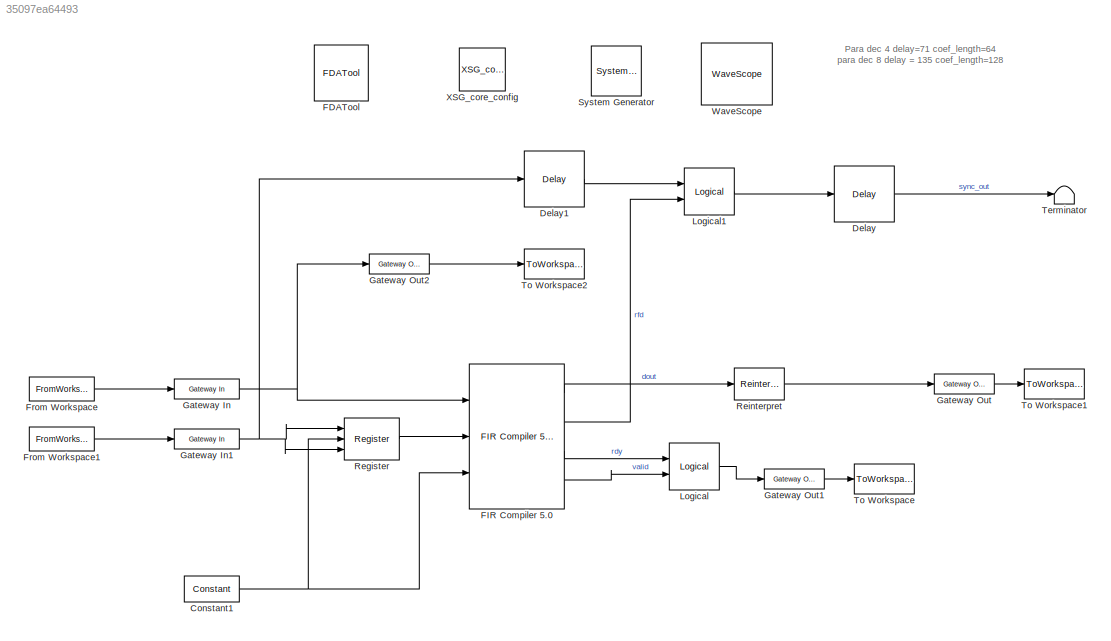
MODEL slx_35097ea64493
KIND model
BLOCK [Reference]  System Generator  REF=xbsIndex_r4/ System Generator
  AttributesFormatString = System\nGenerator
  Impl_file = ISE Defaults
  Ports = []
  SourceBlock = xbsIndex_r4/ System Generator
  SourceType = Xilinx System Generator Block
  Synth_file = XST Defaults
  Tag = genX
  UserDataPersistent = on
  block_type = sysgen
  clock_wrapper = Clock Enables
  core_generation = According to Block Masks
  dbl_ovrd = According to Block Masks
  dcm_input_clock_period = 10
  deprecated_control = off
  directory = ./netlist
  eval_field = 0
  has_advanced_control = 0
  incr_netlist = off
  infoedit = System Generator
  package = fbg676
  part = xc7k325t
  proj_type = Project Navigator
  run_coregen = off
  sg_icon_stat = 50,50,0,0,token,white,0,58c5b5770fe5f7c311f53dbc6e73f0f6,right,,[ ],[ ]
  sg_mask_display = fprintf('','COMMENT: begin icon graphics');\npatch([0 50 50 0 0 ],[0 0 50 50 0 ],[1 1 1 ]);\npatch([1.6375 16.81 27.31 37.81 48.31 27.31 12.1375 1.6375 ],[36.655 36.655 47.155 36.655 47.155 47.155 47.155 36.655 ],[0.933333 0.203922 0.141176 ]);\npatch([12.1375 27.31 16.81 1.6375 12.1375 ],[26.155 26.155 36.655 36.655 26.155 ],[0.698039 0.0313725 0.219608 ]);\npatch([1.6375 16.81 27.31 12.1375 1.6375 ]...<+327ch>
  sggui_pos = -1,-1,-1,-1
  simulink_period = 1
  speed = -3
  synthesis_tool = XST
  sysclk_period = 10
  testbench = off
  trim_vbits = Everywhere in SubSystem
  xilinxfamily = Kintex7
BLOCK [Reference] Constant1  REF=xbsIndex_r4/Constant
  Ports = [0, 1]
  SourceBlock = xbsIndex_r4/Constant
  SourceType = Xilinx Constant Block Block
  arith_type = Boolean
  bin_pt = 14
  block_type = constant
  carry = CIN
  const = 0
  dbl_ovrd = off
  dsp48_infoedit = The use of this block for DSP48 instructions is deprecated.  Please use the Opmode block.
  equ = P=C
  exp_width = 8
  explicit_period = on
  frac_width = 24
  gui_display_data_type = Boolean
  has_advanced_control = 0
  inp1 = P
  inp2 = PCIN>>17
  n_bits = 16
  opr = +
  opselect = C
  period = 1
  preci_type = Single
  sg_icon_stat = 55,26,0,1,white,blue,0,bf4ddd8b,right,,[ ],[ ]
  sg_mask_display = fprintf('','COMMENT: begin icon graphics');\npatch([0 55 55 0 0 ],[0 0 26 26 0 ],[0.77 0.82 0.91 ]);\nplot([0 55 55 0 0 ],[0 0 26 26 0 ]);\npatch([20.325 24.66 27.66 30.66 33.66 27.66 23.325 20.325 ],[16.33 16.33 19.33 16.33 19.33 19.33 19.33 16.33 ],[1 1 1 ]);\npatch([23.325 27.66 24.66 20.325 23.325 ],[13.33 13.33 16.33 16.33 13.33 ],[0.931 0.946 0.973 ]);\npatch([20.325 24.66 27.66 23.325 20.325 ],[...<+323ch>
  sggui_pos = 63,24,337,463
BLOCK [Reference] Delay  REF=xbsIndex_r4/Delay
  Ports = [1, 1]
  SourceBlock = xbsIndex_r4/Delay
  SourceType = Xilinx Delay Block
  block_type = delay
  dbl_ovrd = off
  en = off
  has_advanced_control = 0
  infoedit = Hardware notes: A delay line is a chain, each link of which is an SRL16 followed by a flip-flop.
  infoeditControl = Selection of Reset will increase slice count due to use of real FFs and instead of SRLs
  latency = 135
  reg_retiming = off
  rst = off
  sg_icon_stat = 60,56,1,1,white,blue,0,6684b329,right,,[ ],[ ]
  sg_mask_display = fprintf('','COMMENT: begin icon graphics');\npatch([0 60 60 0 0 ],[0 0 56 56 0 ],[0.77 0.82 0.91 ]);\nplot([0 60 60 0 0 ],[0 0 56 56 0 ]);\npatch([12.2 23.76 31.76 39.76 47.76 31.76 20.2 12.2 ],[36.88 36.88 44.88 36.88 44.88 44.88 44.88 36.88 ],[1 1 1 ]);\npatch([20.2 31.76 23.76 12.2 20.2 ],[28.88 28.88 36.88 36.88 28.88 ],[0.931 0.946 0.973 ]);\npatch([12.2 23.76 31.76 20.2 12.2 ],[20.88 20.88 28.88 ...<+310ch>
  sggui_pos = 53,14,416,361
  xl_area = [0,0,0,0,0,0,0]
  xl_use_area = off
BLOCK [Reference] Delay1  REF=xbsIndex_r4/Delay
  Ports = [1, 1]
  SourceBlock = xbsIndex_r4/Delay
  SourceType = Xilinx Delay Block
  block_type = delay
  dbl_ovrd = off
  en = off
  has_advanced_control = 0
  infoedit = Hardware notes: A delay line is a chain, each link of which is an SRL16 followed by a flip-flop.
  infoeditControl = Selection of Reset will increase slice count due to use of real FFs and instead of SRLs
  latency = 1
  reg_retiming = off
  rst = off
  sg_icon_stat = 60,56,1,1,white,blue,0,07b98262,right,,[ ],[ ]
  sg_mask_display = fprintf('','COMMENT: begin icon graphics');\npatch([0 60 60 0 0 ],[0 0 56 56 0 ],[0.77 0.82 0.91 ]);\nplot([0 60 60 0 0 ],[0 0 56 56 0 ]);\npatch([12.2 23.76 31.76 39.76 47.76 31.76 20.2 12.2 ],[36.88 36.88 44.88 36.88 44.88 44.88 44.88 36.88 ],[1 1 1 ]);\npatch([20.2 31.76 23.76 12.2 20.2 ],[28.88 28.88 36.88 36.88 28.88 ],[0.931 0.946 0.973 ]);\npatch([12.2 23.76 31.76 20.2 12.2 ],[20.88 20.88 28.88 ...<+308ch>
  sggui_pos = 53,14,416,361
  xl_area = [0,0,0,0,0,0,0]
  xl_use_area = off
BLOCK [Reference] FDATool  REF=xbsIndex_r4/FDATool
  Ports = []
  SourceBlock = xbsIndex_r4/FDATool
  SourceType = Xilinx FDATool Interface Block
  UserDataPersistent = on
  block_type = fdatool
  has_advanced_control = 0
  infoedit = FDATool
  sg_icon_stat = 54,56,-1,-1,blue,white,0,07734,right,,[ ],[ ]
  sg_mask_display = fprintf('','COMMENT: begin icon graphics');\npatch([0 54 54 0 0 ],[0 0 56 56 0 ],[1 1 1 ]);\nplot([0 54 54 0 0 ],[0 0 56 56 0 ]);\npatch([11.425 21.54 28.54 35.54 42.54 28.54 18.425 11.425 ],[35.77 35.77 42.77 35.77 42.77 42.77 42.77 35.77 ],[0.839 0.874 0.937 ]);\npatch([18.425 28.54 21.54 11.425 18.425 ],[28.77 28.77 35.77 35.77 28.77 ],[0.77 0.82 0.91 ]);\npatch([11.425 21.54 28.54 18.425 11.425 ],[...<+308ch>
  sggui_pos = -1,-1,-1,-1
BLOCK [Reference] FIR Compiler 5.0   REF=xbsIndex_r4/FIR Compiler 5.0 
  Ports = [3, 4]
  SourceBlock = xbsIndex_r4/FIR Compiler 5.0
  SourceType = Xilinx FIR Compiler 5.0 Block
  allow_rounding_approximation = off
  bestprecision = on
  block_type = fir_compiler_v5_0
  chan_in_adv = 0
  coefficient_buffer_type = Automatic
  coefficient_fractional_bits = 21
  coefficient_reload = off
  coefficient_sets = 1
  coefficient_sign = Signed
  coefficient_structure = Non_Symmetric
  coefficient_width = 20
  coefficientvector = xlfda_numerator('FDATool')
  columnconfig = '31'
  data_buffer_type = Automatic
  data_fractional_bits = 0
  data_sign = Signed
  data_width = 16
  decimation_rate = 4
  dsptool_ready = true
  filter_architecture = Transpose_Multiply_Accumulate
  filter_selection = 1
  filter_type = Decimation
  gui_behaviour = Sysgen
  hardwareoversamplingrate = 1
  has_advanced_control = 0
  has_ce = off
  has_data_valid = on
  has_nd = on
  has_sclr = on
  input_buffer_type = Automatic
  inter_column_pipe_length = 4
  interpolation_rate = 1
  ip_name = FIR Compiler
  ip_version = 5.0
  ip_wrap_arbitrary_binary_point = true
  ipcore_fpga_part = xlipgetpartsetting(gcb, {'virtex4', 'xc4vsx35', '-10', 'ff668'})
  ipcore_usecache = true
  ipcore_useipmodelcache = true
  ipcore_xco_need_fpga_part = true
  multi_column_support = Disabled
  number_channels = 1
  number_paths = 1
  optimization_goal = Area
  output_buffer_type = Automatic
  output_rounding_mode = Full_Precision
  output_width = 39
  passband_max = 0.5
  passband_min = 0.0
  port_translation_map = { 'ce' => 'en', 'sclr' => 'rst' }
  preference_for_other_storage = Automatic
  quantization = Quantize_Only
  rate_change_type = Integer
  ratespecification = Sample_Period
  registered_output = true
  run_core_at_system_period = true
  sampleperiod = 1
  sg_icon_stat = 95,145,3,4,white,blue,0,5f02c517,right,,[ ],[ ]
  sg_mask_display = fprintf('','COMMENT: begin icon graphics');\npatch([0 95 95 0 0 ],[0 0 145 145 0 ],[0.77 0.82 0.91 ]);\nplot([0 95 95 0 0 ],[0 0 145 145 0 ]);\npatch([18.075 36.86 49.86 62.86 75.86 49.86 31.075 18.075 ],[86.43 86.43 99.43 86.43 99.43 99.43 99.43 86.43 ],[1 1 1 ]);\npatch([31.075 49.86 36.86 18.075 31.075 ],[73.43 73.43 86.43 86.43 73.43 ],[0.931 0.946 0.973 ]);\npatch([18.075 36.86 49.86 31.075 18.075...<+607ch>
  sggui_pos = 53,14,448,600
  stopband_max = 1.0
  stopband_min = 0.5
  structural_sim = false
  usechan_in_adv = off
  wrapper_available = true
  xl_area = [0,0,0,0,0,0,0]
  xl_use_area = off
  zero_pack_factor = 1
BLOCK [FromWorkspace] From Workspace
  OutputAfterFinalValue = Holding final value
  SampleTime = 0
  VariableName = data_in
  ZeroCross = on
BLOCK [FromWorkspace] From Workspace1
  OutputAfterFinalValue = Holding final value
  SampleTime = 0
  VariableName = sync
  ZeroCross = on
BLOCK [Reference] Gateway In  REF=xbsIndex_r4/Gateway In
  ADCChannel = '1'
  LOCs = {}
  Ports = [1, 1]
  SourceBlock = xbsIndex_r4/Gateway In
  SourceType = Xilinx Gateway In Block
  UseAsADC = off
  arith_type = Signed  (2's comp)
  bin_pt = 19
  block_type = gatewayin
  dbl_ovrd = off
  exp_width = 8
  frac_width = 24
  gui_display_data_type = Fixed-point
  has_advanced_control = 0
  hdl_port = on
  infoedit = Gateway in block.  Converts inputs of type Simulink integer, single, double and fixed-point to  Xilinx fixed-point or floating-point data type.<br><br>Hardware notes:  In hardware these blocks become top level input ports.
  inherit_from_input = off
  locs_specified = off
  n_bits = 20
  overflow = Saturate
  period = 1
  preci_type = Single
  quantization = Round  (unbiased: +/- Inf)
  sg_icon_stat = 65,20,1,1,white,yellow,1,00d3666e,right,,[ ],[ ]
  sg_mask_display = fprintf('','COMMENT: begin icon graphics');\npatch([0 65 65 0 0 ],[0 0 20 20 0 ],[0.95 0.93 0.65 ]);\nplot([0 65 65 0 0 ],[0 0 20 20 0 ]);\npatch([27.55 30.44 32.44 34.44 36.44 32.44 29.55 27.55 ],[12.22 12.22 14.22 12.22 14.22 14.22 14.22 12.22 ],[1 1 1 ]);\npatch([29.55 32.44 30.44 27.55 29.55 ],[10.22 10.22 12.22 12.22 10.22 ],[0.985 0.979 0.895 ]);\npatch([27.55 30.44 32.44 29.55 27.55 ],[8.22 8.22...<+383ch>
  sggui_pos = 53,14,416,656
  timing_constraint = None
  xl_area = [0,0,0,0,0,0,0]
  xl_use_area = off
BLOCK [Reference] Gateway In1  REF=xbsIndex_r4/Gateway In
  ADCChannel = '1'
  LOCs = {}
  Ports = [1, 1]
  SourceBlock = xbsIndex_r4/Gateway In
  SourceType = Xilinx Gateway In Block
  UseAsADC = off
  arith_type = Boolean
  bin_pt = 14
  block_type = gatewayin
  dbl_ovrd = off
  exp_width = 8
  frac_width = 24
  gui_display_data_type = Boolean
  has_advanced_control = 0
  hdl_port = on
  infoedit = Gateway in block.  Converts inputs of type Simulink integer, single, double and fixed-point to  Xilinx fixed-point or floating-point data type.<br><br>Hardware notes:  In hardware these blocks become top level input ports.
  inherit_from_input = off
  locs_specified = off
  n_bits = 16
  overflow = Saturate
  period = 1
  preci_type = Single
  quantization = Round  (unbiased: +/- Inf)
  sg_icon_stat = 65,20,1,1,white,yellow,1,00d3666e,right,,[ ],[ ]
  sg_mask_display = fprintf('','COMMENT: begin icon graphics');\npatch([0 65 65 0 0 ],[0 0 20 20 0 ],[0.95 0.93 0.65 ]);\nplot([0 65 65 0 0 ],[0 0 20 20 0 ]);\npatch([27.55 30.44 32.44 34.44 36.44 32.44 29.55 27.55 ],[12.22 12.22 14.22 12.22 14.22 14.22 14.22 12.22 ],[1 1 1 ]);\npatch([29.55 32.44 30.44 27.55 29.55 ],[10.22 10.22 12.22 12.22 10.22 ],[0.985 0.979 0.895 ]);\npatch([27.55 30.44 32.44 29.55 27.55 ],[8.22 8.22...<+383ch>
  sggui_pos = 73,34,416,656
  timing_constraint = None
  xl_area = [0,0,0,0,0,0,0]
  xl_use_area = off
BLOCK [Reference] Gateway Out  REF=xbsIndex_r4/Gateway Out
  DACChannel = '1'
  LOCs = {}
  Ports = [1, 1]
  SourceBlock = xbsIndex_r4/Gateway Out
  SourceType = Xilinx Gateway Out Block
  UseAsDAC = off
  block_type = gatewayout
  has_advanced_control = 0
  hdl_port = on
  infoedit = Gateway out block.  Converts Xilinx fixed-point or floating-point type inputs into ouputs of type Simulink integer, single, double, or fixed-point.<br><br>Hardware notes:  In hardware these blocks become top level output ports or are discarded, depending on how they are configured.  <repeated x3 — deduplicated; at blocks: Gateway Out, Gateway Out1, Gateway Out2>
  inherit_from_input = on
  locs_specified = off
  sg_icon_stat = 60,20,1,1,white,yellow,1,cc31b7ac,right,,[ ],[ ]
  sg_mask_display = fprintf('','COMMENT: begin icon graphics');\npatch([0 60 60 0 0 ],[0 0 20 20 0 ],[0.95 0.93 0.65 ]);\nplot([0 60 60 0 0 ],[0 0 20 20 0 ]);\npatch([25.55 28.44 30.44 32.44 34.44 30.44 27.55 25.55 ],[12.22 12.22 14.22 12.22 14.22 14.22 14.22 12.22 ],[1 1 1 ]);\npatch([27.55 30.44 28.44 25.55 27.55 ],[10.22 10.22 12.22 12.22 10.22 ],[0.985 0.979 0.895 ]);\npatch([25.55 28.44 30.44 27.55 25.55 ],[8.22 8.22...<+384ch>  <repeated x3 — deduplicated; at blocks: Gateway Out, Gateway Out1, Gateway Out2>
  sggui_pos = 73,34,400,629
  timing_constraint = None
  xl_area = [0,0,0,0,0,0,0]
  xl_use_area = off
BLOCK [Reference] Gateway Out1  REF=xbsIndex_r4/Gateway Out
  DACChannel = '1'
  LOCs = {}
  Ports = [1, 1]
  SourceBlock = xbsIndex_r4/Gateway Out
  SourceType = Xilinx Gateway Out Block
  UseAsDAC = off
  block_type = gatewayout
  has_advanced_control = 0
  hdl_port = on
  inherit_from_input = on
  locs_specified = off
  sg_icon_stat = 60,20,1,1,white,yellow,1,cc31b7ac,right,,[ ],[ ]
  sggui_pos = 63,24,400,629
  timing_constraint = None
  xl_area = [0,0,0,0,0,0,0]
  xl_use_area = off
BLOCK [Reference] Gateway Out2  REF=xbsIndex_r4/Gateway Out
  DACChannel = '1'
  LOCs = {}
  Ports = [1, 1]
  SourceBlock = xbsIndex_r4/Gateway Out
  SourceType = Xilinx Gateway Out Block
  UseAsDAC = off
  block_type = gatewayout
  has_advanced_control = 0
  hdl_port = on
  inherit_from_input = on
  locs_specified = off
  sg_icon_stat = 60,20,1,1,white,yellow,1,cc31b7ac,right,,[ ],[ ]
  sggui_pos = 73,34,400,629
  timing_constraint = None
  xl_area = [0,0,0,0,0,0,0]
  xl_use_area = off
BLOCK [Reference] Logical  REF=xbsIndex_r4/Logical
  Ports = [2, 1]
  SourceBlock = xbsIndex_r4/Logical
  SourceType = Xilinx Logical Block Block
  align_bp = on
  arith_type = Unsigned
  bin_pt = 0
  block_type = logical
  dbl_ovrd = off
  en = off
  has_advanced_control = 0
  inputs = 2
  latency = 0
  logical_function = AND
  n_bits = 16
  precision = Full
  sg_icon_stat = 50,47,2,1,white,blue,0,83a4b621,right,,[ ],[ ]
  sg_mask_display = fprintf('','COMMENT: begin icon graphics');\npatch([0 50 50 0 0 ],[0 0 47 47 0 ],[0.77 0.82 0.91 ]);\nplot([0 50 50 0 0 ],[0 0 47 47 0 ]);\npatch([11.65 20.32 26.32 32.32 38.32 26.32 17.65 11.65 ],[29.66 29.66 35.66 29.66 35.66 35.66 35.66 29.66 ],[1 1 1 ]);\npatch([17.65 26.32 20.32 11.65 17.65 ],[23.66 23.66 29.66 29.66 23.66 ],[0.931 0.946 0.973 ]);\npatch([11.65 20.32 26.32 17.65 11.65 ],[17.66 17....<+303ch>
  sggui_pos = -1,-1,-1,-1
  xl_area = [0,0,0,0,0,0,0]
  xl_use_area = off
BLOCK [Reference] Logical1  REF=xbsIndex_r4/Logical
  Ports = [2, 1]
  SourceBlock = xbsIndex_r4/Logical
  SourceType = Xilinx Logical Block Block
  align_bp = on
  arith_type = Unsigned
  bin_pt = 0
  block_type = logical
  dbl_ovrd = off
  en = off
  has_advanced_control = 0
  inputs = 2
  latency = 0
  logical_function = AND
  n_bits = 16
  precision = Full
  sg_icon_stat = 50,47,2,1,white,blue,0,83a4b621,right,,[ ],[ ]
  sg_mask_display = fprintf('','COMMENT: begin icon graphics');\npatch([0 50 50 0 0 ],[0 0 47 47 0 ],[0.77 0.82 0.91 ]);\nplot([0 50 50 0 0 ],[0 0 47 47 0 ]);\npatch([11.65 20.32 26.32 32.32 38.32 26.32 17.65 11.65 ],[29.66 29.66 35.66 29.66 35.66 35.66 35.66 29.66 ],[1 1 1 ]);\npatch([17.65 26.32 20.32 11.65 17.65 ],[23.66 23.66 29.66 29.66 23.66 ],[0.931 0.946 0.973 ]);\npatch([11.65 20.32 26.32 17.65 11.65 ],[17.66 17....<+303ch>
  sggui_pos = -1,-1,-1,-1
  xl_area = [0,0,0,0,0,0,0]
  xl_use_area = off
BLOCK [Reference] Register  REF=xbsIndex_r4/Register
  Ports = [3, 1]
  SourceBlock = xbsIndex_r4/Register
  SourceType = Xilinx Register Block
  block_type = register
  dbl_ovrd = off
  en = on
  has_advanced_control = 0
  init = 0
  rst = on
  sg_icon_stat = 55,42,3,1,white,blue,0,30546de1,right,,[ ],[ ]
  sg_mask_display = fprintf('','COMMENT: begin icon graphics');\npatch([0 55 55 0 0 ],[0 0 42 42 0 ],[0.77 0.82 0.91 ]);\nplot([0 55 55 0 0 ],[0 0 42 42 0 ]);\npatch([13.65 22.32 28.32 34.32 40.32 28.32 19.65 13.65 ],[27.66 27.66 33.66 27.66 33.66 33.66 33.66 27.66 ],[1 1 1 ]);\npatch([19.65 28.32 22.32 13.65 19.65 ],[21.66 21.66 27.66 27.66 21.66 ],[0.931 0.946 0.973 ]);\npatch([13.65 22.32 28.32 19.65 13.65 ],[15.66 15....<+486ch>
  sggui_pos = 73,34,416,203
  xl_area = [0,0,0,0,0,0,0]
  xl_use_area = off
BLOCK [Reference] Reinterpret  REF=xbsIndex_r4/Reinterpret
  Ports = [1, 1]
  SourceBlock = xbsIndex_r4/Reinterpret
  SourceType = Xilinx Type Reinterpreter Block
  arith_type = Unsigned
  bin_pt = 38
  block_type = reinterpret
  force_arith_type = off
  force_bin_pt = on
  has_advanced_control = 0
  infoedit = Changes signal type without altering the binary representation.   You can change the signal between signed and unsigned, and relocate the binary point.<br><br>Hardware notes: In hardware this block costs nothing.<br><br>Example:  Suppose the input is 6 bits wide, signed, with 2 fractional bits, and the output is forced to unsigned with 0 fractional bits.  Then an input of -2.0 (1110.00 in binary 2...<+58ch>
  sg_icon_stat = 50,32,1,1,white,blue,0,6b04d0b0,right,,[ ],[ ]
  sg_mask_display = fprintf('','COMMENT: begin icon graphics');\npatch([0 50 50 0 0 ],[0 0 32 32 0 ],[0.77 0.82 0.91 ]);\nplot([0 50 50 0 0 ],[0 0 32 32 0 ]);\npatch([16.1 21.88 25.88 29.88 33.88 25.88 20.1 16.1 ],[20.44 20.44 24.44 20.44 24.44 24.44 24.44 20.44 ],[1 1 1 ]);\npatch([20.1 25.88 21.88 16.1 20.1 ],[16.44 16.44 20.44 20.44 16.44 ],[0.931 0.946 0.973 ]);\npatch([16.1 21.88 25.88 20.1 16.1 ],[12.44 12.44 16.44 ...<+294ch>
  sggui_pos = 636,62,364,363
BLOCK [Terminator] Terminator
BLOCK [ToWorkspace] To Workspace
  MaxDataPoints = inf
  Ports = [1]
  SampleTime = -1
  SaveFormat = Timeseries
  VariableName = valid
BLOCK [ToWorkspace] To Workspace1
  MaxDataPoints = inf
  Ports = [1]
  SampleTime = -1
  SaveFormat = Timeseries
  VariableName = dat_out
BLOCK [ToWorkspace] To Workspace2
  MaxDataPoints = inf
  Ports = [1]
  SampleTime = -1
  SaveFormat = Timeseries
  VariableName = dat_in
BLOCK [Reference] WaveScope  REF=xbsIndex_r4/WaveScope
  Ports = []
  SourceBlock = xbsIndex_r4/WaveScope
  SourceType = Xilinx WaveScope Block
  UserDataPersistent = on
  block_type = wavescope
  has_advanced_control = 0
  infoedit = WaveScope
  sg_icon_stat = 71,62,-1,-1,blue,white,0,07734,right,,[ ],[ ]
  sg_mask_display = fprintf('','COMMENT: begin icon graphics');\npatch([0 71 71 0 0 ],[0 0 62 62 0 ],[1 1 1 ]);\nplot([0 71 71 0 0 ],[0 0 62 62 0 ]);\npatch([17.2 28.76 36.76 44.76 52.76 36.76 25.2 17.2 ],[39.88 39.88 47.88 39.88 47.88 47.88 47.88 39.88 ],[0.839 0.874 0.937 ]);\npatch([25.2 36.76 28.76 17.2 25.2 ],[31.88 31.88 39.88 39.88 31.88 ],[0.77 0.82 0.91 ]);\npatch([17.2 28.76 36.76 25.2 17.2 ],[23.88 23.88 31.88 ...<+536ch>
  sggui_pos = -1,-1,-1,-1
BLOCK [Reference] XSG_core_config  REF=xps_library/XSG_core_config  (lib defined in mdl_00b5cec29cd0, mdl_02ab6ecaa3d1, +5 more)
  MKDIG_clk_src = sys_clk
  Ports = []
  ROACH2_clk_src = sys_clk
  ROACH_clk_src = sys_clk
  SourceBlock = xps_library/XSG_core_config
  SourceType = xsg core config
  Tag = xps:xsg
  clk_rate = 135
  clk_src = sys_clk
  hw_sys = ROACH2:sx475t
  sample_period = 1
  synthesis_tool = XST
ANNOTATION (root): Para dec 4 delay=71 coef_length=64 para dec 8 delay = 135 coef_length=128
NET Constant1:1 -> FIR Compiler 5.0 :3, Register:2
LINE Delay1:1 -> Logical1:1
LINE Delay:1 -> Terminator:1
LINE FIR Compiler 5.0 :1 -> Reinterpret:1
LINE FIR Compiler 5.0 :2 -> Logical1:2
LINE FIR Compiler 5.0 :3 -> Logical:1
LINE FIR Compiler 5.0 :4 -> Logical:2
LINE From Workspace1:1 -> Gateway In1:1
LINE From Workspace:1 -> Gateway In:1
NET Gateway In1:1 -> Delay1:1, Register:1, Register:3
NET Gateway In:1 -> FIR Compiler 5.0 :1, Gateway Out2:1
LINE Gateway Out1:1 -> To Workspace:1
LINE Gateway Out2:1 -> To Workspace2:1
LINE Gateway Out:1 -> To Workspace1:1
LINE Logical1:1 -> Delay:1
LINE Logical:1 -> Gateway Out1:1
LINE Register:1 -> FIR Compiler 5.0 :2
LINE Reinterpret:1 -> Gateway Out:1
note: NET lines group one-source signal fan-out (src -> all destinations, sorted); 1:1 wires keep LINE
